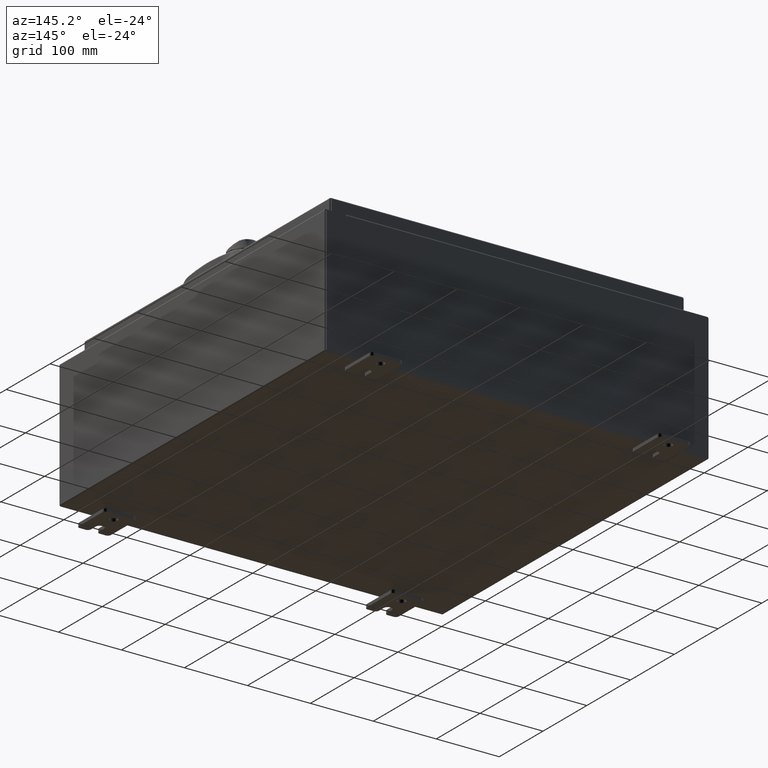
[diagram: clean part render]
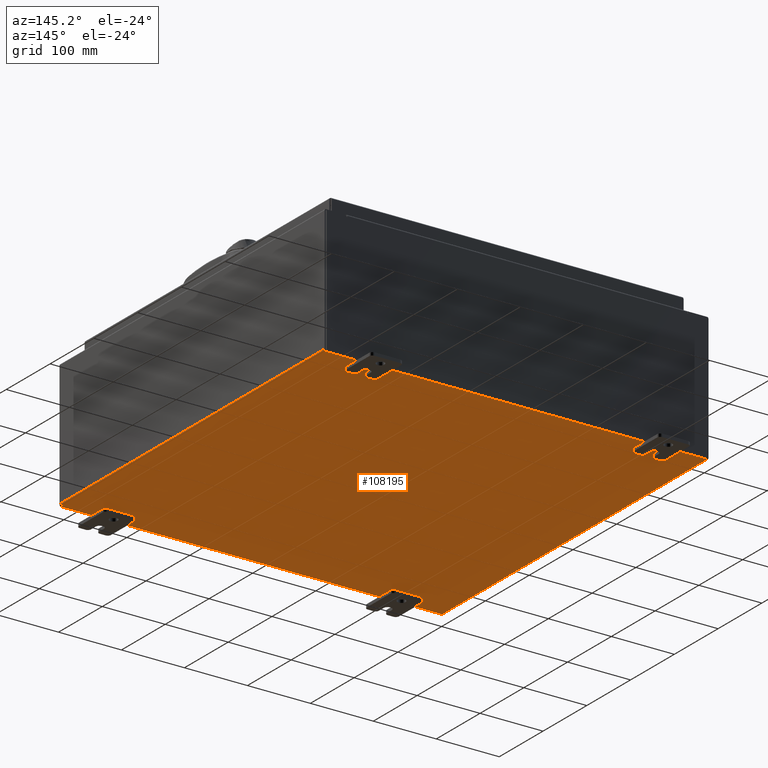
[diagram: same view with one face highlighted and labeled with its STEP entity id]
A machine part, auxiliary view. The second image highlights one B-rep face of the part: STEP entity #108195.
In plain terms, the highlighted planar face has unit normal (0, 0, -1).
Its self-contained STEP definition (entity closure, byte-faithful):
#3586 = CARTESIAN_POINT ( 'NONE',  ( 11.91229999999999800, 11.92529999999999600, -0.07469999999999994700 ) ) ;
#14270 = AXIS2_PLACEMENT_3D ( 'NONE', #94079, #42243, #102746 ) ;
#15965 = PLANE ( 'NONE',  #14270 ) ;
#20081 = VECTOR ( 'NONE', #23253, 39.37007874015748100 ) ;
#23117 = EDGE_CURVE ( 'NONE', #110539, #81218, #81287, .T. ) ;
#23253 = DIRECTION ( 'NONE',  ( 1.000000000000000000, 0.0000000000000000000, 0.0000000000000000000 ) ) ;
#25946 = VERTEX_POINT ( 'NONE', #60969 ) ;
#30482 = VECTOR ( 'NONE', #56709, 39.37007874015748100 ) ;
#35105 = CARTESIAN_POINT ( 'NONE',  ( -11.91230000000000400, -11.92530000000000400, -0.07469999999999994700 ) ) ;
#35651 = FACE_OUTER_BOUND ( 'NONE', #62432, .T. ) ;
#39188 = LINE ( 'NONE', #75204, #20081 ) ;
#41054 = EDGE_CURVE ( 'NONE', #59597, #25946, #41402, .T. ) ;
#41402 = LINE ( 'NONE', #98871, #84729 ) ;
#42243 = DIRECTION ( 'NONE',  ( 0.0000000000000000000, 0.0000000000000000000, -1.000000000000000000 ) ) ;
#55591 = EDGE_CURVE ( 'NONE', #110539, #25946, #39188, .T. ) ;
#56709 = DIRECTION ( 'NONE',  ( -1.000000000000000000, -0.0000000000000000000, -0.0000000000000000000 ) ) ;
#59597 = VERTEX_POINT ( 'NONE', #3586 ) ;
#60969 = CARTESIAN_POINT ( 'NONE',  ( 11.91229999999998900, -11.92530000000000400, -0.07470000000000000300 ) ) ;
#62432 = EDGE_LOOP ( 'NONE', ( #73979, #105522, #91336, #100480 ) ) ;
#72132 = EDGE_CURVE ( 'NONE', #59597, #81218, #76631, .T. ) ;
#73490 = CARTESIAN_POINT ( 'NONE',  ( -11.91230000000000400, 11.92529999999999800, -0.07470000000000000300 ) ) ;
#73979 = ORIENTED_EDGE ( 'NONE', *, *, #55591, .F. ) ;
#75204 = CARTESIAN_POINT ( 'NONE',  ( -12.00000000000000400, -11.92530000000000400, -0.07470000000000000300 ) ) ;
#76631 = LINE ( 'NONE', #99805, #30482 ) ;
#81218 = VERTEX_POINT ( 'NONE', #73490 ) ;
#81287 = LINE ( 'NONE', #35105, #83994 ) ;
#83994 = VECTOR ( 'NONE', #104384, 39.37007874015748100 ) ;
#84729 = VECTOR ( 'NONE', #90161, 39.37007874015748100 ) ;
#90161 = DIRECTION ( 'NONE',  ( -0.0000000000000000000, -1.000000000000000000, -0.0000000000000000000 ) ) ;
#91336 = ORIENTED_EDGE ( 'NONE', *, *, #72132, .F. ) ;
#94079 = CARTESIAN_POINT ( 'NONE',  ( 0.0000000000000000000, 0.0000000000000000000, -0.07470000000000000300 ) ) ;
#98871 = CARTESIAN_POINT ( 'NONE',  ( 11.91229999999999800, 11.92529999999999800, -0.07469999999999994700 ) ) ;
#99805 = CARTESIAN_POINT ( 'NONE',  ( -12.00000000000000400, 11.92529999999999800, -0.07470000000000000300 ) ) ;
#100480 = ORIENTED_EDGE ( 'NONE', *, *, #41054, .T. ) ;
#102746 = DIRECTION ( 'NONE',  ( -1.000000000000000000, 0.0000000000000000000, -0.0000000000000000000 ) ) ;
#104384 = DIRECTION ( 'NONE',  ( -0.0000000000000000000, 1.000000000000000000, -0.0000000000000000000 ) ) ;
#105522 = ORIENTED_EDGE ( 'NONE', *, *, #23117, .T. ) ;
#107759 = CARTESIAN_POINT ( 'NONE',  ( -11.91230000000000400, -11.92530000000000000, -0.07469999999999994700 ) ) ;
#108195 = ADVANCED_FACE ( 'NONE', ( #35651 ), #15965, .T. ) ;
#110539 = VERTEX_POINT ( 'NONE', #107759 ) ;